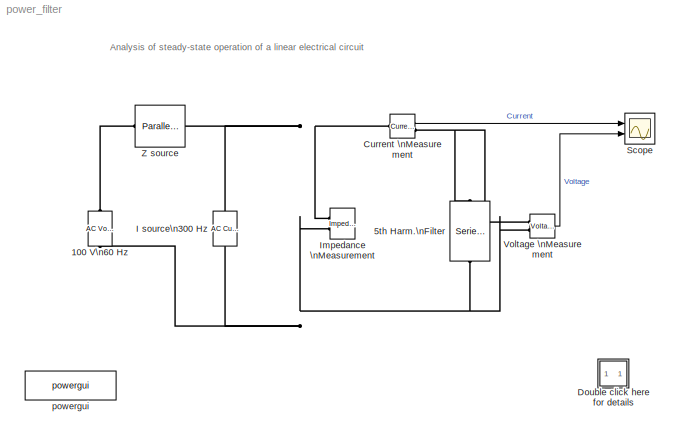
MODEL power_filter
KIND model
BLOCK [Reference] 100 V\n60 Hz  REF=powerlib/Electrical\nSources/AC Voltage Source
  Amplitude = 100
  AttributesFormatString = \\n
  Description = source block
  Frequency = 60
  Measurements = None
  Phase = 0
  Ports = [0, 0, 0, 0, 0, 1, 1]
  SampleTime = 0
  ShowPortLabels = on
  SourceBlock = powerlib/Electrical\nSources/AC Voltage Source
  SourceType = AC Voltage Source
BLOCK [Reference] 5th Harm.\nFilter  REF=powerlib/Elements/Series RLC Branch
  AttributesFormatString = \\n
  Capacitance = 2.62e-06
  Inductance = 107.42e-03
  LConnTagsString = __new0
  LeftPortType = p1
  Measurements = None
  PhysicalDomain = powersysdomain
  Ports = [0, 0, 0, 0, 0, 1, 1]
  RConnTagsString = __new0
  Resistance = 1.27
  RightPortType = p1
  SourceBlock = powerlib/Elements/Series RLC Branch
  SourceType = Series RLC Branch
  SubClassName = unknown
BLOCK [Reference] Current \nMeasurement  REF=powerlib/Measurements/Current Measurement
  AttributesFormatString = \\n
  OutputType = Magnitude
  PSBequivalent = 0
  PhasorSimulation = off
  Ports = [0, 1, 0, 0, 0, 1, 1]
  ShowPortLabels = on
  SourceBlock = powerlib/Measurements/Current Measurement
  SourceType = Current Measurement
  Tag = PoWeRsYsTeMmEaSuReMeNt
BLOCK [SubSystem] Double click  here for details
  MaskDisplay = disp('?')
  MaskIconFrame = on
  MaskIconOpaque = on
  MaskIconRotate = none
  MaskIconUnits = autoscale
  MinAlgLoopOccurrences = off
  Ports = []
  RTWSystemCode = Auto
  TreatAsAtomicUnit = off
BLOCK [Reference] I source\n300 Hz  REF=powerlib/Electrical\nSources/AC Current Source
  Amplitude = 10
  AttributesFormatString = \\n
  Frequency = 300
  Measurements = None
  Phase = -30
  Ports = [0, 0, 0, 0, 0, 1, 1]
  SampleTime = 0
  ShowPortLabels = on
  SourceBlock = powerlib/Electrical\nSources/AC Current Source
  SourceType = AC Current Source
BLOCK [Reference] Impedance \nMeasurement  REF=powerlib/Measurements/Impedance Measurement
  AttributesFormatString = \\n
  Factor = 1
  LConnTagsString = +|-
  LeftPortType = p1
  PhysicalDomain = powersysdomain
  Ports = [0, 0, 0, 0, 0, 2]
  RightPortType = p1
  SourceBlock = powerlib/Measurements/Impedance Measurement
  SourceType = Impedance Measurement
  SubClassName = unknown
BLOCK [Scope] Scope
  DataFormat = Array
  LimitDataPoints = off
  NumInputPorts = 2
  Ports = [2]
  TimeRange = 0.1
  YMax = 10~200
  YMin = -10~-200
BLOCK [Reference] Voltage \nMeasurement  REF=powerlib/Measurements/Voltage Measurement
  AttributesFormatString = \\n
  OutputType = Magnitude
  PSBequivalent = 0
  PhasorSimulation = off
  Ports = [0, 1, 0, 0, 0, 2]
  ShowPortLabels = on
  SourceBlock = powerlib/Measurements/Voltage Measurement
  SourceType = Voltage Measurement
  Tag = PoWeRsYsTeMmEaSuReMeNt
BLOCK [Reference] Z source  REF=powerlib/Elements/Parallel RLC Branch
  AttributesFormatString = \\n
  Capacitance = 0
  Inductance = 10e-03
  LConnTagsString = a
  LeftPortType = p1
  Measurements = None
  PhysicalDomain = powersysdomain
  Ports = [0, 0, 0, 0, 0, 1, 1]
  RConnTagsString = __new0
  Resistance = 37.7
  RightPortType = p1
  SourceBlock = powerlib/Elements/Parallel RLC Branch
  SourceType = Parallel RLC Branch
  SubClassName = unknown
BLOCK [Reference] powergui  REF=powerlib/powergui
  DisplayStyle = off
  Frange = 0:2:1000
  FreqAxis = off
  MaxFrequency = 1000
  Ports = []
  Priority = 2
  RmsSteady = 1
  ShowPortLabels = on
  SourceBlock = powerlib/powergui
  SourceType = PSB option menu block
  StartTime = 0.0
  Ts = 0
  Xlog = off
  Ylog = off
  ZoomFFT = on
  cycles = 1
  display = off
  echomessages = on
  frequency = 60
  frequencyindice = 1
  frequencyindicesteady = 1
  fundamental = 60
  methode = off
  save = off
  variable = ZData
ANNOTATION (root): Analysis of steady-state operation of a linear electrical circuit
ANNOTATION Double click  here for details: 1
ANNOTATION Double click  here for details: 2
ANNOTATION Double click  here for details: 3
ANNOTATION Double click  here for details: A 5th harmonic filter is connected at a bus bar fed by a 60 Hz, 100 V inductive source. \nA 5th harmonic (300 Hz, 1 A) current is injected at the bus bar.\n\nThis linear system consists of 3 states (2 inductor currents and 1 capacitor voltage),\n 2 inputs (Vs, Is) and 2 outputs (Current and Voltage Measurement).\n\nAn Impedance Measurement block is used to compute the impedance versus frequency of...<+13ch>
ANNOTATION Double click  here for details: Circuit Description
ANNOTATION Double click  here for details: Demonstration
ANNOTATION Double click  here for details: G. Sybille (Hydro-Quebec)
ANNOTATION Double click  here for details: This demonstration illustrates use of the Powergui\nand Impedance Measurement blocks to analyze the\nsteady-state operation of a linear electrical circuit
ANNOTATION Double click  here for details: Use the Powergui block to find the steady-sate 60Hz and 300 Hz components of voltage and\ncurrent phasors. The values of the 3 states (phasors and initial values) can be also obtained \nfrom the powergui block.\n\nOpen the scope and start the simulation from the Simulation/Start menu.\nNotice that the simulation starts in steady-state.\n\nUsing the Powergui block, select Impedance vs Frequency Mea...<+321ch>
LINE Current \nMeasurement:1 -> Scope:1
LINE Voltage \nMeasurement:1 -> Scope:2
PNET net1: 100 V\n60 Hz:LConn1 -- 5th Harm.\nFilter:RConn1 -- I source\n300 Hz:LConn1 -- Impedance \nMeasurement:LConn2 -- Voltage \nMeasurement:LConn2
PLINE 100 V\n60 Hz:RConn1 -- Z source:LConn1
PNET net2: 5th Harm.\nFilter:LConn1 -- Current \nMeasurement:RConn1 -- Voltage \nMeasurement:LConn1
PNET net3: Current \nMeasurement:LConn1 -- I source\n300 Hz:RConn1 -- Impedance \nMeasurement:LConn1 -- Z source:RConn1
note: PNET lines group multi-terminal physical nets as a canonical sorted terminal list (undirected conserving connections); 2-terminal nets keep the pairwise PLINE form
